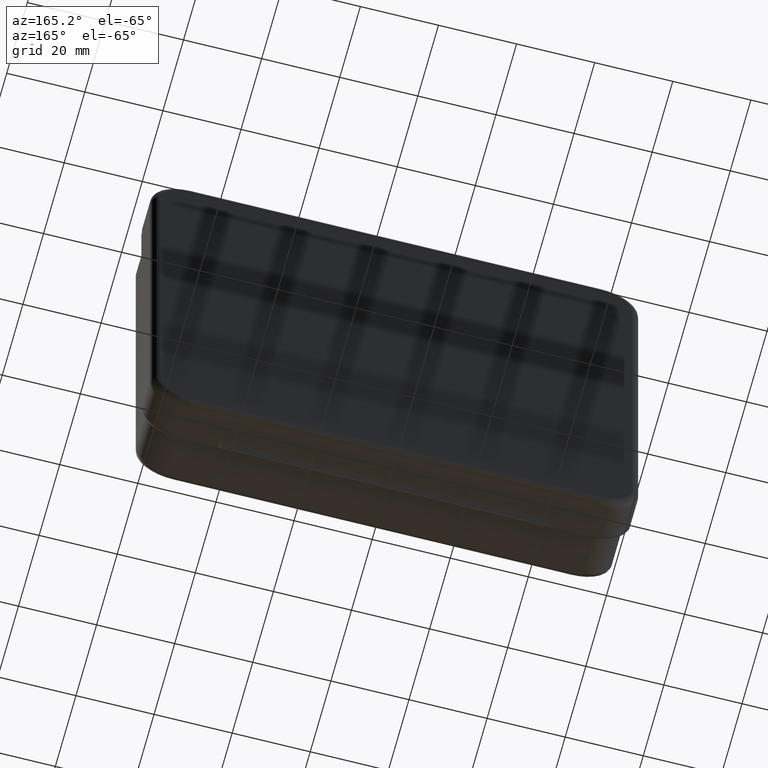
[diagram: clean part render]
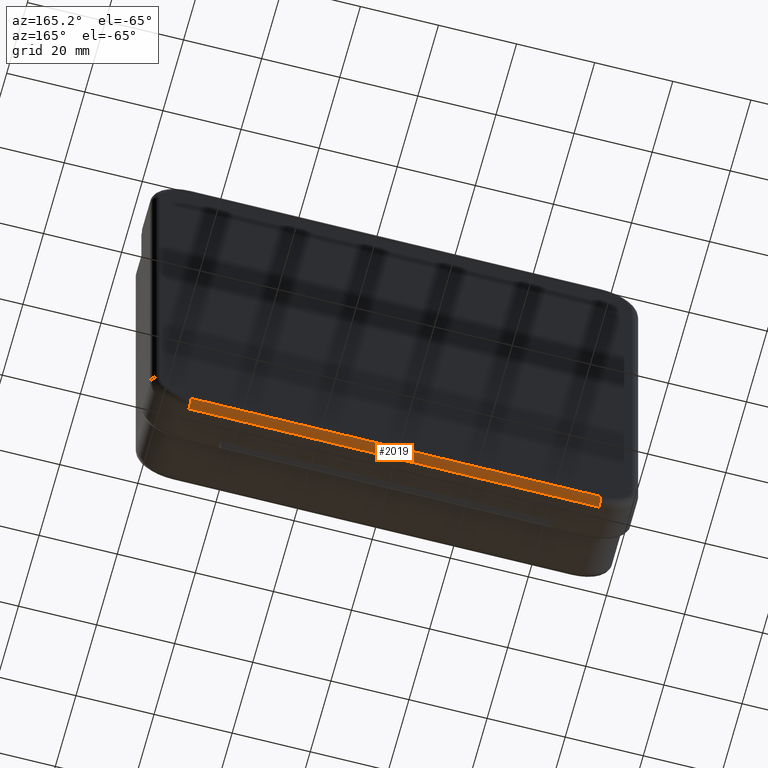
[diagram: same view with one face highlighted and labeled with its STEP entity id]
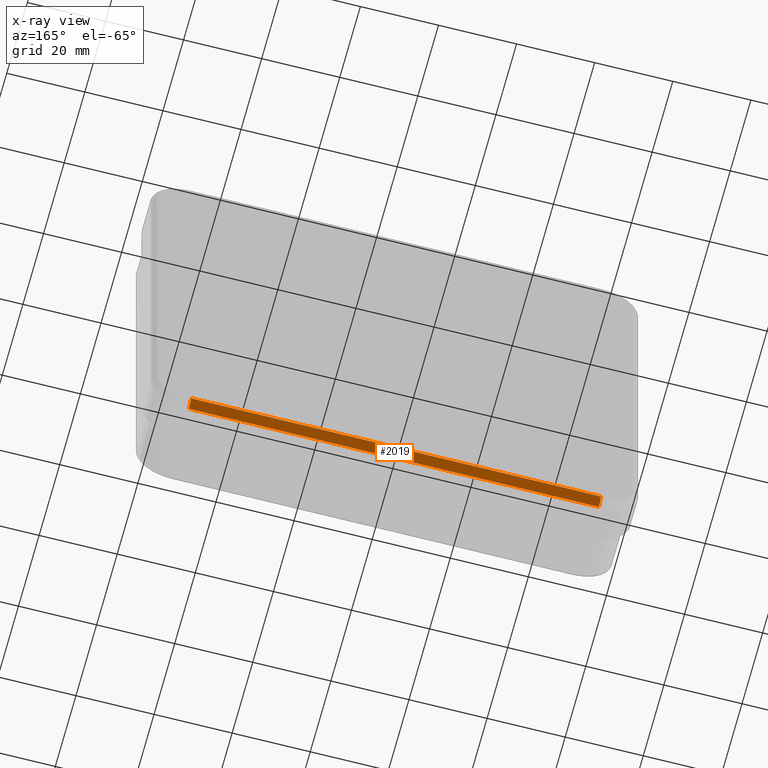
[diagram: x-ray of the same camera — body ghosted, the highlighted face saturated]
A machine part, auxiliary view. The second image highlights one B-rep face of the part: STEP entity #2019.
The next image is the same camera in x-ray: the body ghosted, the highlighted face saturated — about 0% of this face is hidden behind the body in this view.
In plain terms, the highlighted cylindrical surface (edge-blend (fillet) strip) has radius 2 mm, axis along (1, 0, 0).
Its self-contained STEP definition (entity closure, byte-faithful):
#118 = CARTESIAN_POINT ( 'NONE',  ( 52.49999999999997868, 9.499999999999998224, -60.49999999999998579 ) ) ;
#156 = EDGE_LOOP ( 'NONE', ( #3789, #2853, #3020, #1105 ) ) ;
#219 = EDGE_CURVE ( 'NONE', #1685, #767, #406, .T. ) ;
#233 = DIRECTION ( 'NONE',  ( 0.0000000000000000000, 0.0000000000000000000, 1.000000000000000000 ) ) ;
#379 = EDGE_CURVE ( 'NONE', #767, #1576, #1998, .T. ) ;
#406 = CIRCLE ( 'NONE', #2640, 2.000000000000001776 ) ;
#410 = CYLINDRICAL_SURFACE ( 'NONE', #2333, 2.000000000000001776 ) ;
#420 = CARTESIAN_POINT ( 'NONE',  ( -52.50000000000001421, 9.499999999999998224, -60.49999999999998579 ) ) ;
#583 = VECTOR ( 'NONE', #663, 1000.000000000000000 ) ;
#639 = LINE ( 'NONE', #898, #583 ) ;
#663 = DIRECTION ( 'NONE',  ( -1.000000000000000000, 0.0000000000000000000, 0.0000000000000000000 ) ) ;
#680 = FACE_OUTER_BOUND ( 'NONE', #156, .T. ) ;
#699 = CARTESIAN_POINT ( 'NONE',  ( 52.49999999999997868, 7.500000000000000000, -62.49999999999998579 ) ) ;
#767 = VERTEX_POINT ( 'NONE', #2025 ) ;
#898 = CARTESIAN_POINT ( 'NONE',  ( -52.50000000000001421, 9.499999999999998224, -60.49999999999998579 ) ) ;
#900 = CIRCLE ( 'NONE', #2577, 2.000000000000001776 ) ;
#1052 = DIRECTION ( 'NONE',  ( 0.0000000000000000000, 0.0000000000000000000, -1.000000000000000000 ) ) ;
#1105 = ORIENTED_EDGE ( 'NONE', *, *, #4187, .F. ) ;
#1445 = VERTEX_POINT ( 'NONE', #118 ) ;
#1576 = VERTEX_POINT ( 'NONE', #1603 ) ;
#1603 = CARTESIAN_POINT ( 'NONE',  ( 52.49999999999997868, 7.500000000000000000, -62.49999999999998579 ) ) ;
#1685 = VERTEX_POINT ( 'NONE', #420 ) ;
#1998 = LINE ( 'NONE', #699, #3703 ) ;
#2013 = DIRECTION ( 'NONE',  ( -1.000000000000000000, 0.0000000000000000000, 0.0000000000000000000 ) ) ;
#2018 = CARTESIAN_POINT ( 'NONE',  ( 0.0000000000000000000, 7.500000000000000000, -60.49999999999998579 ) ) ;
#2019 = ADVANCED_FACE ( 'NONE', ( #680 ), #410, .T. ) ;
#2025 = CARTESIAN_POINT ( 'NONE',  ( -52.50000000000001421, 7.500000000000000000, -62.49999999999998579 ) ) ;
#2102 = DIRECTION ( 'NONE',  ( 1.000000000000000000, 0.0000000000000000000, 0.0000000000000000000 ) ) ;
#2284 = CARTESIAN_POINT ( 'NONE',  ( -52.50000000000001421, 7.500000000000000000, -60.49999999999998579 ) ) ;
#2333 = AXIS2_PLACEMENT_3D ( 'NONE', #2018, #2102, #1052 ) ;
#2577 = AXIS2_PLACEMENT_3D ( 'NONE', #3312, #2013, #3351 ) ;
#2640 = AXIS2_PLACEMENT_3D ( 'NONE', #2284, #3584, #233 ) ;
#2853 = ORIENTED_EDGE ( 'NONE', *, *, #379, .F. ) ;
#3020 = ORIENTED_EDGE ( 'NONE', *, *, #219, .F. ) ;
#3044 = DIRECTION ( 'NONE',  ( 1.000000000000000000, -0.0000000000000000000, -0.0000000000000000000 ) ) ;
#3312 = CARTESIAN_POINT ( 'NONE',  ( 52.49999999999997868, 7.500000000000000000, -60.49999999999998579 ) ) ;
#3351 = DIRECTION ( 'NONE',  ( 0.0000000000000000000, 0.0000000000000000000, 1.000000000000000000 ) ) ;
#3486 = EDGE_CURVE ( 'NONE', #1445, #1576, #900, .T. ) ;
#3584 = DIRECTION ( 'NONE',  ( -1.000000000000000000, 0.0000000000000000000, 0.0000000000000000000 ) ) ;
#3703 = VECTOR ( 'NONE', #3044, 1000.000000000000000 ) ;
#3789 = ORIENTED_EDGE ( 'NONE', *, *, #3486, .T. ) ;
#4187 = EDGE_CURVE ( 'NONE', #1445, #1685, #639, .T. ) ;